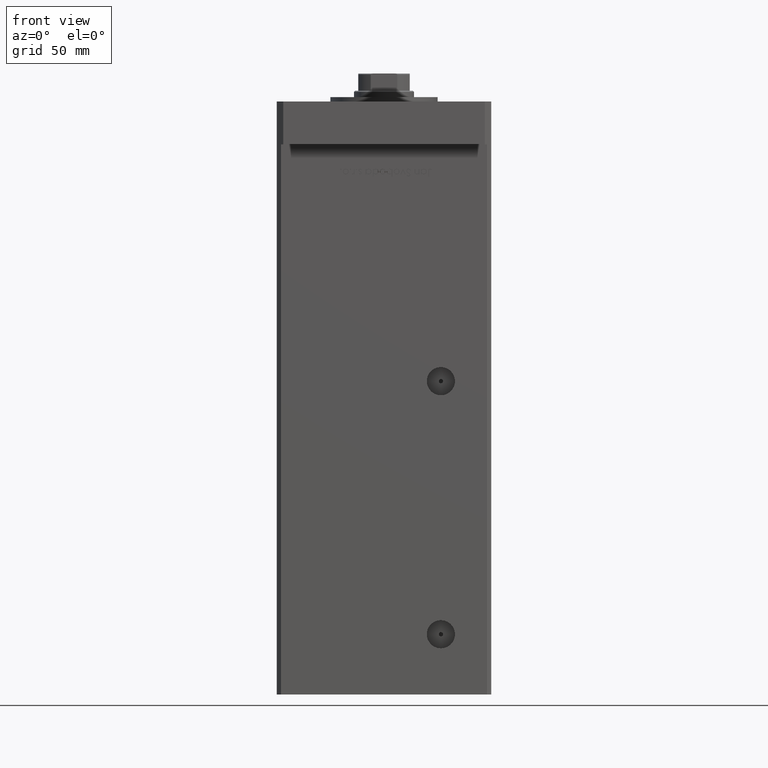
[diagram: clean part render]
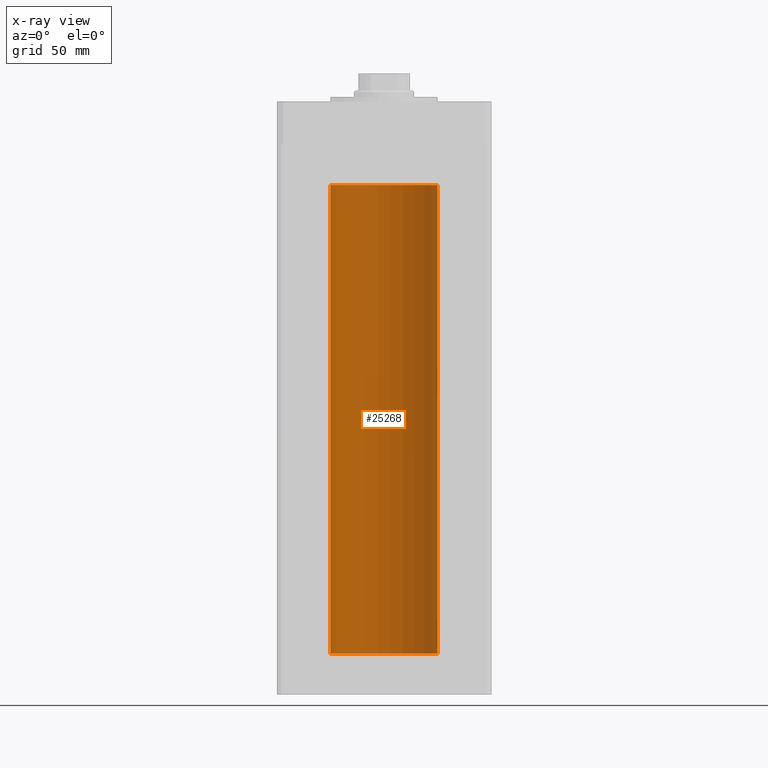
[diagram: x-ray — body ghosted, one internal face saturated and labeled with its STEP entity id]
A machine part, front view, then the same camera in x-ray: the body is ghosted and one INTERNAL B-rep face — a face not visible from any outside direction — is saturated and labeled: STEP entity #25268.
In plain terms, the highlighted cylindrical surface (partial cylindrical patch) has radius 25 mm, axis along (-0, -0, -1).
Its self-contained STEP definition (entity closure, byte-faithful):
#1854 = CARTESIAN_POINT ( 'NONE',  ( 25.00000000000000000, 3.061616997868383043E-15, 218.5000000000000000 ) ) ;
#2433 = LINE ( 'NONE', #52340, #17404 ) ;
#4127 = CARTESIAN_POINT ( 'NONE',  ( 25.00000000000000000, 3.061616997868383043E-15, 0.000000000000000000 ) ) ;
#5277 = CIRCLE ( 'NONE', #19211, 25.00000000000000000 ) ;
#8143 = LINE ( 'NONE', #15800, #31909 ) ;
#8275 = CARTESIAN_POINT ( 'NONE',  ( -25.00000000000000000, 0.000000000000000000, 0.000000000000000000 ) ) ;
#10352 = EDGE_CURVE ( 'NONE', #21597, #30048, #5277, .T. ) ;
#11456 = DIRECTION ( 'NONE',  ( -0.000000000000000000, -0.000000000000000000, -1.000000000000000000 ) ) ;
#11654 = DIRECTION ( 'NONE',  ( -0.000000000000000000, 0.000000000000000000, 1.000000000000000000 ) ) ;
#13500 = AXIS2_PLACEMENT_3D ( 'NONE', #22960, #52420, #27581 ) ;
#15800 = CARTESIAN_POINT ( 'NONE',  ( 25.00000000000000000, 3.061616997868383043E-15, 218.5000000000000000 ) ) ;
#17290 = ORIENTED_EDGE ( 'NONE', *, *, #52808, .T. ) ;
#17404 = VECTOR ( 'NONE', #31597, 1000.000000000000000 ) ;
#19211 = AXIS2_PLACEMENT_3D ( 'NONE', #19813, #11654, #20598 ) ;
#19813 = CARTESIAN_POINT ( 'NONE',  ( 0.000000000000000000, 0.000000000000000000, 0.000000000000000000 ) ) ;
#20598 = DIRECTION ( 'NONE',  ( 1.000000000000000000, 0.000000000000000000, 0.000000000000000000 ) ) ;
#21069 = ORIENTED_EDGE ( 'NONE', *, *, #42631, .F. ) ;
#21597 = VERTEX_POINT ( 'NONE', #4127 ) ;
#22960 = CARTESIAN_POINT ( 'NONE',  ( 0.000000000000000000, 0.000000000000000000, 218.5000000000000000 ) ) ;
#25268 = ADVANCED_FACE ( 'NONE', ( #27475 ), #32110, .F. ) ;
#25276 = ORIENTED_EDGE ( 'NONE', *, *, #10352, .F. ) ;
#27475 = FACE_OUTER_BOUND ( 'NONE', #46222, .T. ) ;
#27581 = DIRECTION ( 'NONE',  ( 1.000000000000000000, 0.000000000000000000, 0.000000000000000000 ) ) ;
#29300 = ORIENTED_EDGE ( 'NONE', *, *, #33214, .T. ) ;
#30048 = VERTEX_POINT ( 'NONE', #8275 ) ;
#31597 = DIRECTION ( 'NONE',  ( -0.000000000000000000, -0.000000000000000000, -1.000000000000000000 ) ) ;
#31831 = CARTESIAN_POINT ( 'NONE',  ( 0.000000000000000000, 0.000000000000000000, 218.5000000000000000 ) ) ;
#31909 = VECTOR ( 'NONE', #11456, 1000.000000000000000 ) ;
#32110 = CYLINDRICAL_SURFACE ( 'NONE', #33253, 25.00000000000000000 ) ;
#33214 = EDGE_CURVE ( 'NONE', #48605, #42649, #50926, .T. ) ;
#33253 = AXIS2_PLACEMENT_3D ( 'NONE', #31831, #36463, #40290 ) ;
#36463 = DIRECTION ( 'NONE',  ( -0.000000000000000000, -0.000000000000000000, -1.000000000000000000 ) ) ;
#37047 = CARTESIAN_POINT ( 'NONE',  ( -25.00000000000000000, 0.000000000000000000, 218.5000000000000000 ) ) ;
#40290 = DIRECTION ( 'NONE',  ( -1.000000000000000000, 0.000000000000000000, 0.000000000000000000 ) ) ;
#42631 = EDGE_CURVE ( 'NONE', #48605, #21597, #8143, .T. ) ;
#42649 = VERTEX_POINT ( 'NONE', #37047 ) ;
#46222 = EDGE_LOOP ( 'NONE', ( #21069, #29300, #17290, #25276 ) ) ;
#48605 = VERTEX_POINT ( 'NONE', #1854 ) ;
#50926 = CIRCLE ( 'NONE', #13500, 25.00000000000000000 ) ;
#52340 = CARTESIAN_POINT ( 'NONE',  ( -25.00000000000000000, 0.000000000000000000, 218.5000000000000000 ) ) ;
#52420 = DIRECTION ( 'NONE',  ( -0.000000000000000000, 0.000000000000000000, 1.000000000000000000 ) ) ;
#52808 = EDGE_CURVE ( 'NONE', #42649, #30048, #2433, .T. ) ;